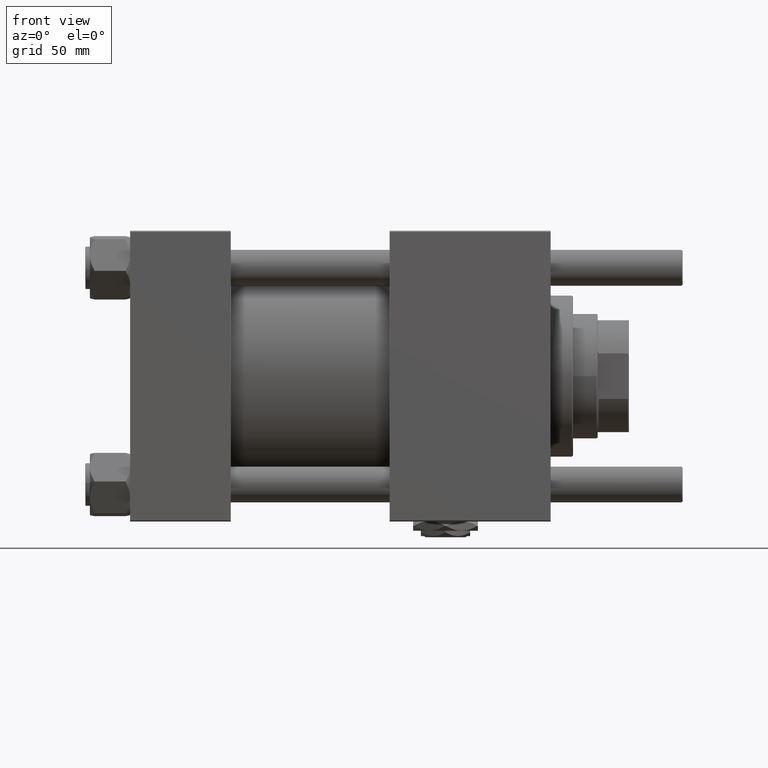
[diagram: clean part render]
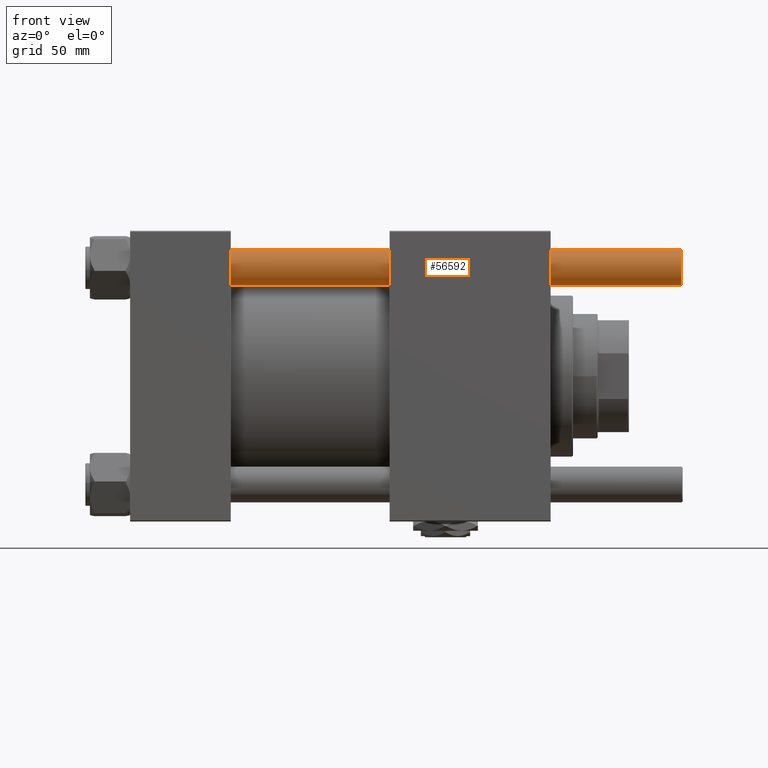
[diagram: same view with one face highlighted and labeled with its STEP entity id]
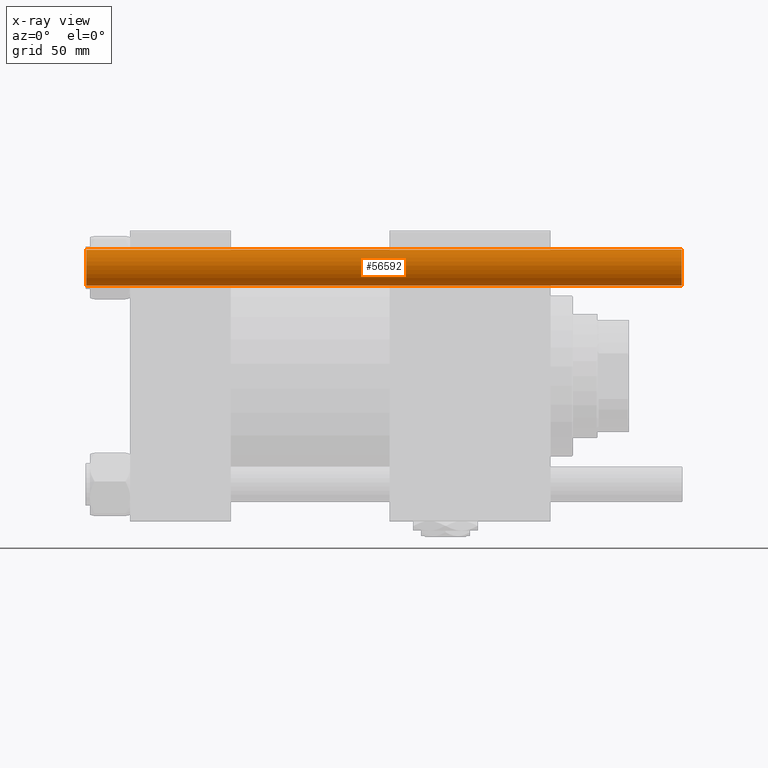
[diagram: x-ray of the same camera — body ghosted, the highlighted face saturated]
A machine part, front view. The second image highlights one B-rep face of the part: STEP entity #56592.
The next image is the same camera in x-ray: the body ghosted, the highlighted face saturated — about 0% of this face is hidden behind the body in this view.
In plain terms, the highlighted cylindrical surface (edge-blend (fillet) strip) has radius 8 mm, axis along (-1, 0, -0).
Its self-contained STEP definition (entity closure, byte-faithful):
#2039 = VERTEX_POINT ( 'NONE', #37528 ) ;
#6804 = ORIENTED_EDGE ( 'NONE', *, *, #56704, .T. ) ;
#6972 = DIRECTION ( 'NONE',  ( -0.000000000000000000, -0.000000000000000000, 1.000000000000000000 ) ) ;
#7949 = ORIENTED_EDGE ( 'NONE', *, *, #58388, .T. ) ;
#8044 = DIRECTION ( 'NONE',  ( -0.000000000000000000, -0.000000000000000000, -1.000000000000000000 ) ) ;
#9190 = CARTESIAN_POINT ( 'NONE',  ( 8.000000000000000000, 9.797174393178825657E-16, 0.5000000000000559552 ) ) ;
#9587 = CYLINDRICAL_SURFACE ( 'NONE', #34745, 8.000000000000000000 ) ;
#9875 = DIRECTION ( 'NONE',  ( -0.000000000000000000, -0.000000000000000000, -1.000000000000000000 ) ) ;
#12598 = EDGE_CURVE ( 'NONE', #2039, #16450, #44226, .T. ) ;
#13600 = ORIENTED_EDGE ( 'NONE', *, *, #12598, .T. ) ;
#16420 = CARTESIAN_POINT ( 'NONE',  ( 8.000000000000000000, 9.797174393178825657E-16, 267.0000000000000000 ) ) ;
#16450 = VERTEX_POINT ( 'NONE', #47491 ) ;
#17294 = VECTOR ( 'NONE', #8044, 1000.000000000000000 ) ;
#17519 = ORIENTED_EDGE ( 'NONE', *, *, #27110, .F. ) ;
#20992 = VERTEX_POINT ( 'NONE', #48268 ) ;
#24363 = AXIS2_PLACEMENT_3D ( 'NONE', #47216, #6972, #42453 ) ;
#26821 = CARTESIAN_POINT ( 'NONE',  ( -8.000000000000000000, 0.000000000000000000, 267.0000000000000000 ) ) ;
#27110 = EDGE_CURVE ( 'NONE', #2039, #20992, #48872, .T. ) ;
#28830 = DIRECTION ( 'NONE',  ( 1.000000000000000000, 0.000000000000000000, 0.000000000000000000 ) ) ;
#30133 = EDGE_LOOP ( 'NONE', ( #13600, #6804, #7949, #17519 ) ) ;
#31017 = CIRCLE ( 'NONE', #24363, 8.000000000000000000 ) ;
#32814 = VECTOR ( 'NONE', #48308, 1000.000000000000000 ) ;
#32816 = DIRECTION ( 'NONE',  ( -1.000000000000000000, 0.000000000000000000, 0.000000000000000000 ) ) ;
#34745 = AXIS2_PLACEMENT_3D ( 'NONE', #45941, #9875, #32816 ) ;
#37528 = CARTESIAN_POINT ( 'NONE',  ( -8.000000000000000000, 0.000000000000000000, 266.5000000000000568 ) ) ;
#41932 = VERTEX_POINT ( 'NONE', #9190 ) ;
#42453 = DIRECTION ( 'NONE',  ( 1.000000000000000000, 0.000000000000000000, 0.000000000000000000 ) ) ;
#44226 = CIRCLE ( 'NONE', #51828, 8.000000000000000000 ) ;
#45941 = CARTESIAN_POINT ( 'NONE',  ( 0.000000000000000000, 0.000000000000000000, 267.0000000000000000 ) ) ;
#47216 = CARTESIAN_POINT ( 'NONE',  ( 0.000000000000000000, 0.000000000000000000, 0.5000000000000559552 ) ) ;
#47491 = CARTESIAN_POINT ( 'NONE',  ( 8.000000000000000000, 9.797174393178825657E-16, 266.5000000000000568 ) ) ;
#47599 = DIRECTION ( 'NONE',  ( 0.000000000000000000, 0.000000000000000000, -1.000000000000000000 ) ) ;
#47890 = CARTESIAN_POINT ( 'NONE',  ( 0.000000000000000000, 0.000000000000000000, 266.5000000000000568 ) ) ;
#48008 = LINE ( 'NONE', #16420, #32814 ) ;
#48268 = CARTESIAN_POINT ( 'NONE',  ( -8.000000000000000000, 0.000000000000000000, 0.5000000000000559552 ) ) ;
#48308 = DIRECTION ( 'NONE',  ( -0.000000000000000000, -0.000000000000000000, -1.000000000000000000 ) ) ;
#48872 = LINE ( 'NONE', #26821, #17294 ) ;
#51828 = AXIS2_PLACEMENT_3D ( 'NONE', #47890, #47599, #28830 ) ;
#55478 = FACE_OUTER_BOUND ( 'NONE', #30133, .T. ) ;
#56592 = ADVANCED_FACE ( 'NONE', ( #55478 ), #9587, .T. ) ;
#56704 = EDGE_CURVE ( 'NONE', #16450, #41932, #48008, .T. ) ;
#58388 = EDGE_CURVE ( 'NONE', #41932, #20992, #31017, .T. ) ;